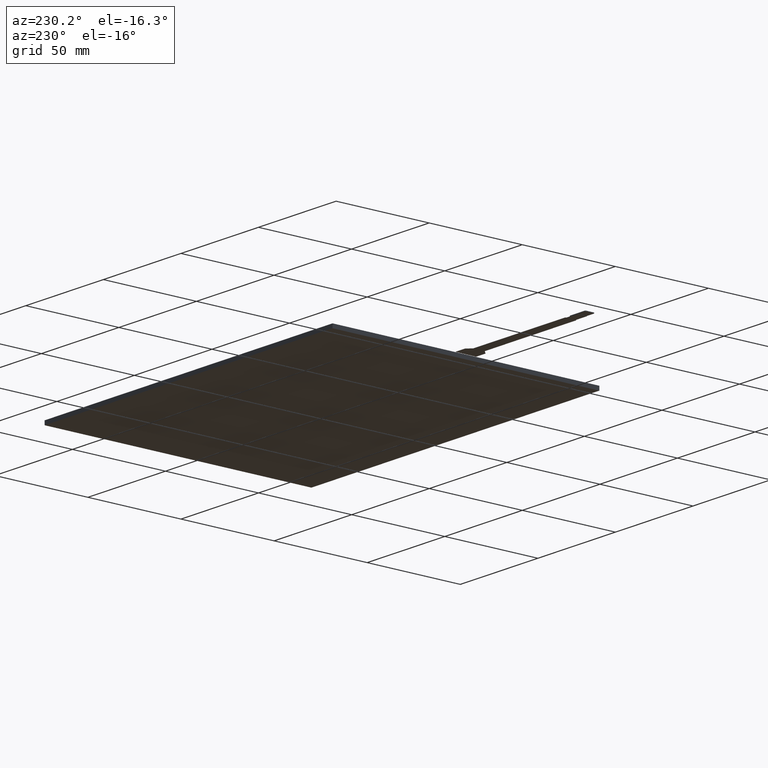
[diagram: clean part render]
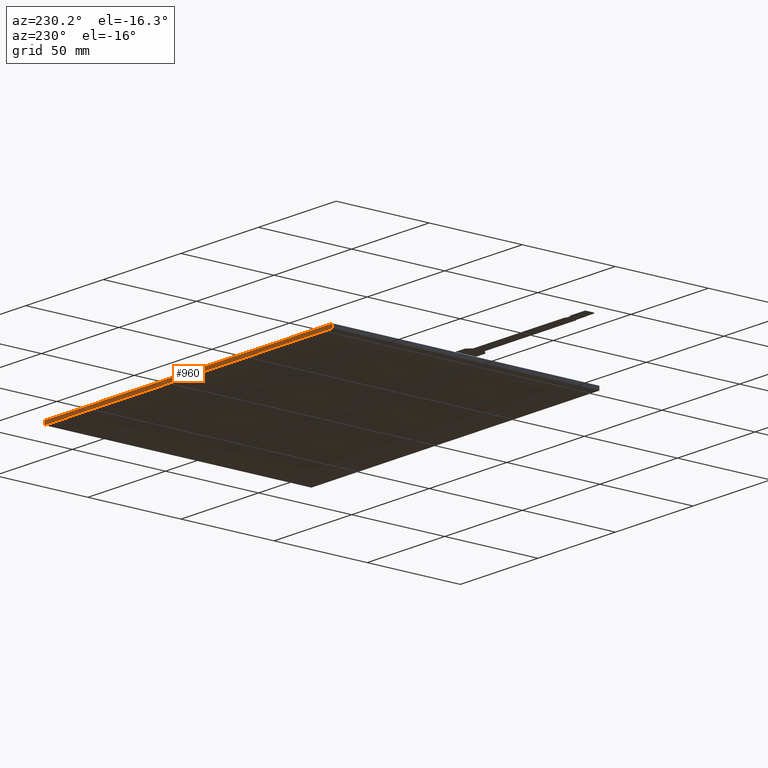
[diagram: same view with one face highlighted and labeled with its STEP entity id]
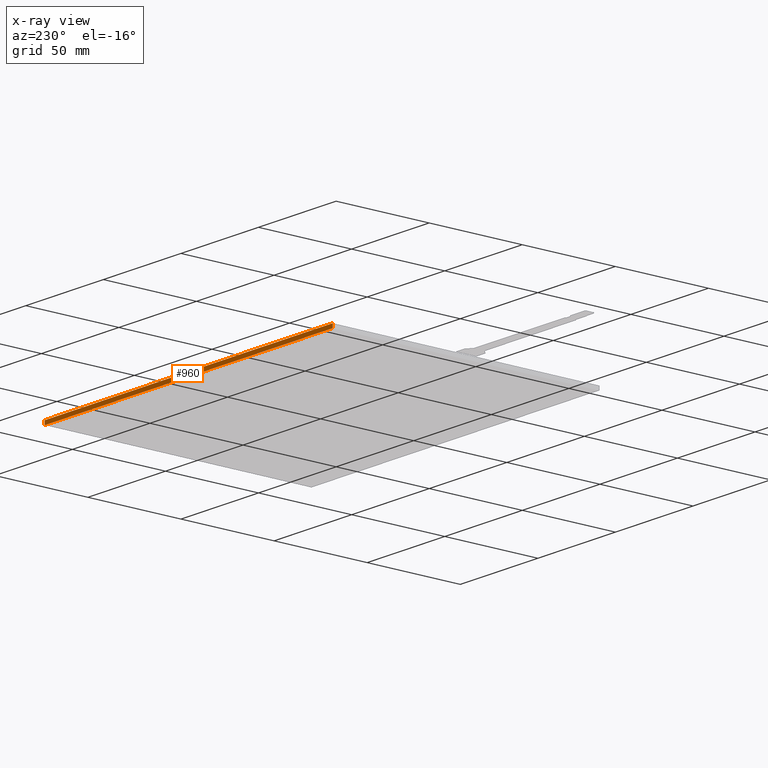
[diagram: x-ray of the same camera — body ghosted, the highlighted face saturated]
A machine part, auxiliary view. The second image highlights one B-rep face of the part: STEP entity #960.
The next image is the same camera in x-ray: the body ghosted, the highlighted face saturated — about 0% of this face is hidden behind the body in this view.
In plain terms, the highlighted planar face has unit normal (0, 1, 0).
Its self-contained STEP definition (entity closure, byte-faithful):
#50=FACE_OUTER_BOUND('',#104,.T.);
#104=EDGE_LOOP('',(#685,#686,#687,#688));
#167=LINE('',#1393,#293);
#171=LINE('',#1401,#297);
#177=LINE('',#1412,#303);
#178=LINE('',#1414,#304);
#293=VECTOR('',#1130,10.);
#297=VECTOR('',#1136,10.);
#303=VECTOR('',#1146,10.);
#304=VECTOR('',#1149,10.);
#411=VERTEX_POINT('',#1391);
#412=VERTEX_POINT('',#1392);
#415=VERTEX_POINT('',#1400);
#418=VERTEX_POINT('',#1410);
#511=EDGE_CURVE('',#411,#412,#167,.T.);
#515=EDGE_CURVE('',#412,#415,#171,.T.);
#521=EDGE_CURVE('',#411,#418,#177,.T.);
#522=EDGE_CURVE('',#415,#418,#178,.T.);
#685=ORIENTED_EDGE('',*,*,#511,.F.);
#686=ORIENTED_EDGE('',*,*,#521,.T.);
#687=ORIENTED_EDGE('',*,*,#522,.F.);
#688=ORIENTED_EDGE('',*,*,#515,.F.);
#914=PLANE('',#1033);
#960=ADVANCED_FACE('',(#50),#914,.T.);
#1033=AXIS2_PLACEMENT_3D('',#1413,#1147,#1148);
#1130=DIRECTION('',(-1.,0.,0.));
#1136=DIRECTION('',(0.,0.,-1.));
#1146=DIRECTION('',(0.,0.,-1.));
#1147=DIRECTION('center_axis',(0.,1.,0.));
#1148=DIRECTION('ref_axis',(1.,0.,0.));
#1149=DIRECTION('',(1.,0.,0.));
#1391=CARTESIAN_POINT('',(91.95,71.65,0.));
#1392=CARTESIAN_POINT('',(-93.65,71.65,0.));
#1393=CARTESIAN_POINT('',(91.95,71.65,0.));
#1400=CARTESIAN_POINT('',(-93.65,71.65,-2.1));
#1401=CARTESIAN_POINT('',(-93.65,71.65,0.));
#1410=CARTESIAN_POINT('',(91.95,71.65,-2.1));
#1412=CARTESIAN_POINT('',(91.95,71.65,0.));
#1413=CARTESIAN_POINT('Origin',(-93.65,71.65,0.));
#1414=CARTESIAN_POINT('',(91.95,71.65,-2.1));